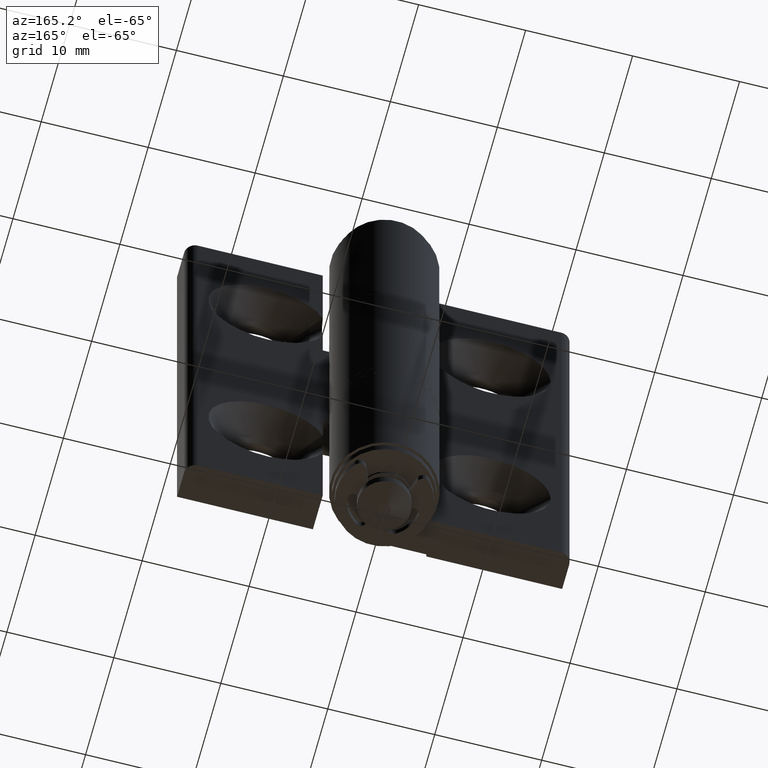
[diagram: clean part render]
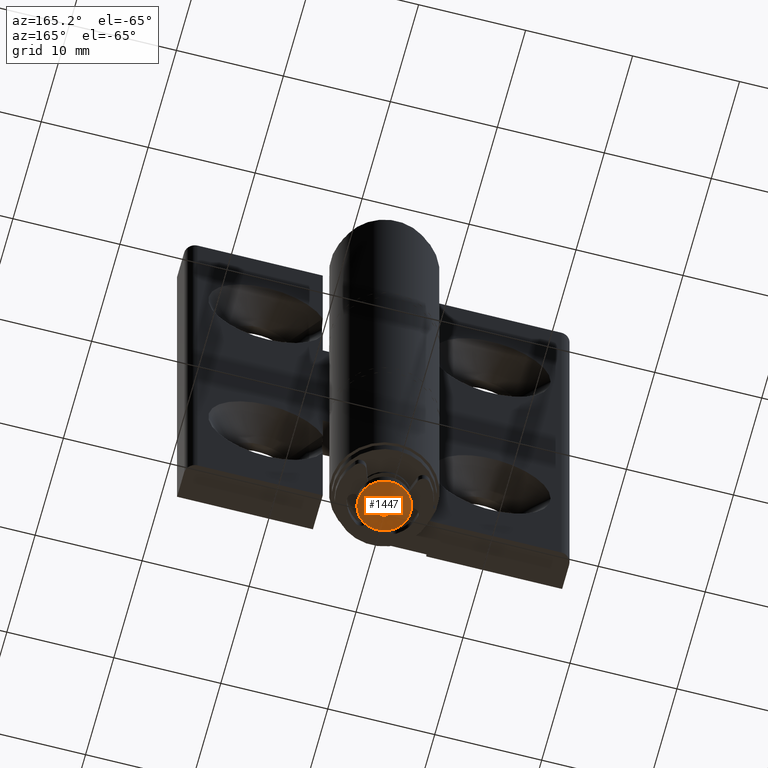
[diagram: same view with one face highlighted and labeled with its STEP entity id]
A machine part, auxiliary view. The second image highlights one B-rep face of the part: STEP entity #1447.
In plain terms, the highlighted conical surface has half-angle 63.13 deg.
Its self-contained STEP definition (entity closure, byte-faithful):
#80=CONICAL_SURFACE('',#1616,1.5375,1.10182961902258);
#148=FACE_BOUND('',#346,.T.);
#230=FACE_OUTER_BOUND('',#345,.T.);
#345=EDGE_LOOP('',(#1317));
#346=EDGE_LOOP('',(#1318));
#425=CIRCLE('',#1615,2.475);
#426=CIRCLE('',#1617,0.6);
#769=VERTEX_POINT('',#2489);
#770=VERTEX_POINT('',#2492);
#953=EDGE_CURVE('',#769,#769,#425,.T.);
#954=EDGE_CURVE('',#770,#770,#426,.T.);
#1317=ORIENTED_EDGE('',*,*,#953,.T.);
#1318=ORIENTED_EDGE('',*,*,#954,.F.);
#1447=ADVANCED_FACE('',(#230,#148),#80,.T.);
#1615=AXIS2_PLACEMENT_3D('',#2490,#2054,#2055);
#1616=AXIS2_PLACEMENT_3D('',#2491,#2056,#2057);
#1617=AXIS2_PLACEMENT_3D('',#2493,#2058,#2059);
#2054=DIRECTION('center_axis',(1.05317778652199E-16,-1.,0.));
#2055=DIRECTION('ref_axis',(1.,1.05317778652199E-16,0.));
#2056=DIRECTION('center_axis',(-1.05317778652199E-16,1.,0.));
#2057=DIRECTION('ref_axis',(-1.,-1.05317778652199E-16,0.));
#2058=DIRECTION('center_axis',(1.05317778652199E-16,-1.,0.));
#2059=DIRECTION('ref_axis',(1.,1.05317778652199E-16,0.));
#2489=CARTESIAN_POINT('',(2.47500000000001,-53.55,3.0310008278897E-16));
#2490=CARTESIAN_POINT('Origin',(5.63976704682526E-15,-53.55,0.));
#2491=CARTESIAN_POINT('Origin',(5.68979299168506E-15,-54.025,0.));
#2492=CARTESIAN_POINT('',(0.600000000000003,-54.5,7.34788079488409E-17));
#2493=CARTESIAN_POINT('Origin',(5.73981893654485E-15,-54.5,0.));